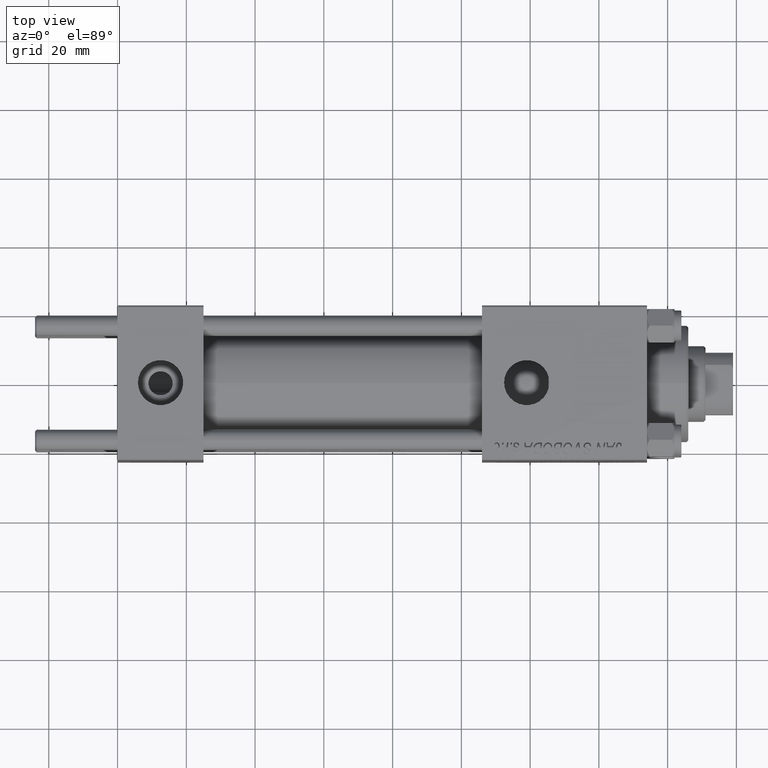
[diagram: clean part render]
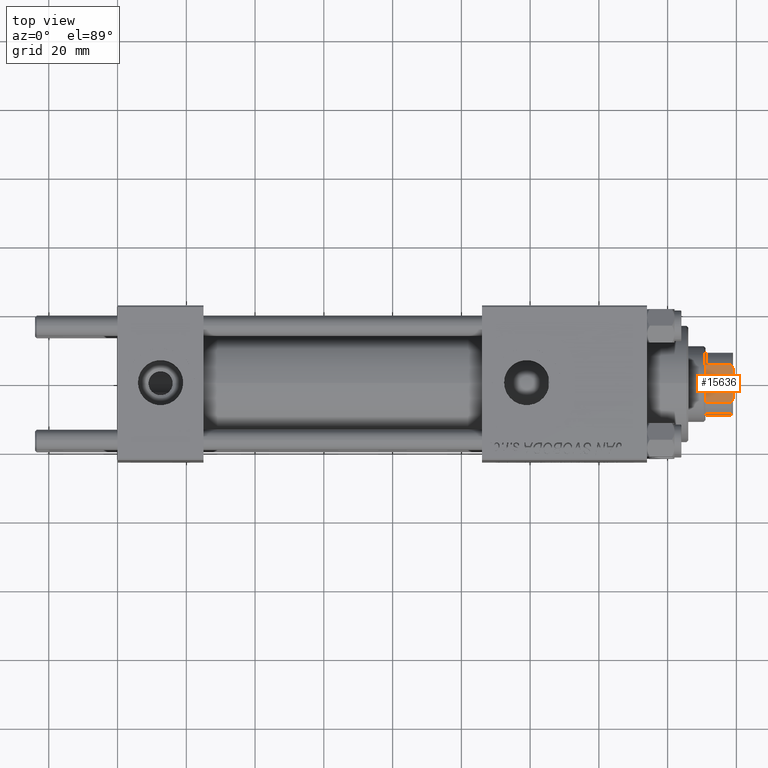
[diagram: same view with one face highlighted and labeled with its STEP entity id]
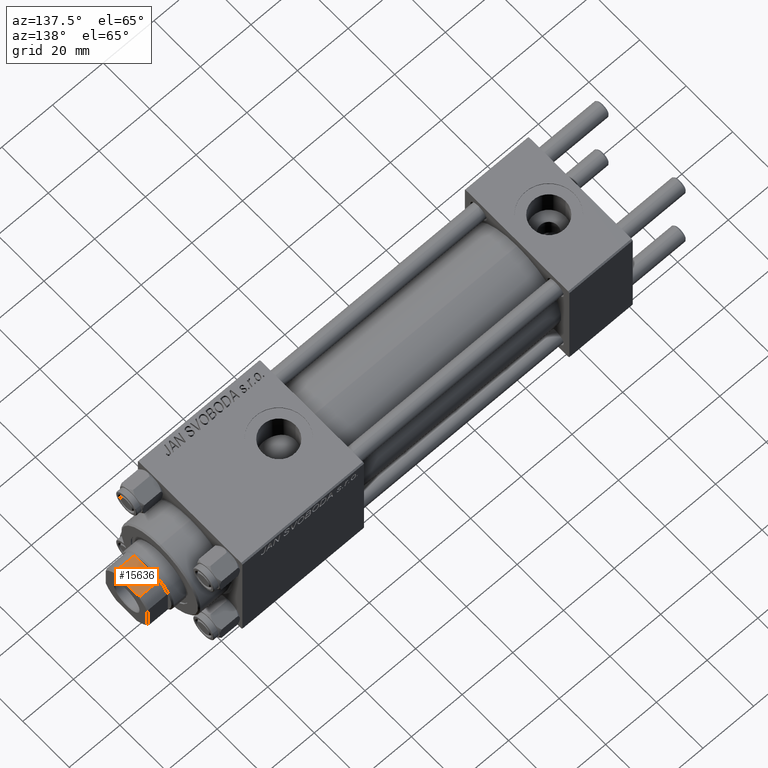
[diagram: same view with one face highlighted and labeled with its STEP entity id]
A machine part, top view. The second image highlights one B-rep face of the part: STEP entity #15636.
A second angle (auxiliary view) of the same face is appended — the face is thin or edge-on in the first view.
In plain terms, the highlighted planar face has unit normal (-0, 0, -1).
Its self-contained STEP definition (entity closure, byte-faithful):
#159 = VERTEX_POINT ( 'NONE', #22724 ) ;
#4234 = CARTESIAN_POINT ( 'NONE',  ( -5.408326913195988794, -8.999999999999998224, 146.0000000000001137 ) ) ;
#4297 = CARTESIAN_POINT ( 'NONE',  ( -5.408326913195988794, -8.999999999999998224, -0.001000000000001000089 ) ) ;
#4768 = CARTESIAN_POINT ( 'NONE',  ( 5.408326913195988794, -8.999999999999998224, 153.5000000000000284 ) ) ;
#4812 = EDGE_LOOP ( 'NONE', ( #33357, #28905, #21882, #31845, #32498, #38510 ) ) ;
#5033 = VERTEX_POINT ( 'NONE', #26458 ) ;
#6697 = PLANE ( 'NONE',  #16292 ) ;
#7551 = VECTOR ( 'NONE', #41103, 1000.000000000000000 ) ;
#7802 = VECTOR ( 'NONE', #22065, 1000.000000000000000 ) ;
#8099 = LINE ( 'NONE', #4297, #40327 ) ;
#8572 = LINE ( 'NONE', #23962, #7551 ) ;
#10500 = DIRECTION ( 'NONE',  ( 0.000000000000000000, -0.000000000000000000, 1.000000000000000000 ) ) ;
#11441 = EDGE_CURVE ( 'NONE', #36861, #5033, #8099, .T. ) ;
#13546 = CARTESIAN_POINT ( 'NONE',  ( -9.000000000000001776, -9.000000000000001776, 154.0000000000000284 ) ) ;
#15636 = ADVANCED_FACE ( 'NONE', ( #48089 ), #6697, .F. ) ;
#15660 = VECTOR ( 'NONE', #40193, 1000.000000000000000 ) ;
#15883 = CARTESIAN_POINT ( 'NONE',  ( 4.714305797500248474, -9.000000000000001776, 153.8450817439748732 ) ) ;
#16292 = AXIS2_PLACEMENT_3D ( 'NONE', #13546, #17825, #10500 ) ;
#17825 = DIRECTION ( 'NONE',  ( 0.000000000000000000, 1.000000000000000000, 0.000000000000000000 ) ) ;
#21882 = ORIENTED_EDGE ( 'NONE', *, *, #46756, .F. ) ;
#22065 = DIRECTION ( 'NONE',  ( 1.000000000000000000, 0.000000000000000000, 0.000000000000000000 ) ) ;
#22724 = CARTESIAN_POINT ( 'NONE',  ( -4.358898943540679305, -9.000000000000001776, 154.0000000000000284 ) ) ;
#23015 = CARTESIAN_POINT ( 'NONE',  ( 5.408326913195988794, -8.999999999999998224, 146.0000000000001137 ) ) ;
#23888 = EDGE_CURVE ( 'NONE', #159, #5033, #29561, .T. ) ;
#23962 = CARTESIAN_POINT ( 'NONE',  ( 5.408326913195988794, -8.999999999999998224, -0.001000000000001000089 ) ) ;
#24382 = CARTESIAN_POINT ( 'NONE',  ( 5.408326913195988794, -8.999999999999998224, 153.5000000000000284 ) ) ;
#26458 = CARTESIAN_POINT ( 'NONE',  ( -5.408326913195988794, -8.999999999999998224, 153.5000000000000284 ) ) ;
#28030 = DIRECTION ( 'NONE',  ( -0.000000000000000000, -0.000000000000000000, 1.000000000000000000 ) ) ;
#28905 = ORIENTED_EDGE ( 'NONE', *, *, #40336, .T. ) ;
#29085 = CARTESIAN_POINT ( 'NONE',  ( -9.000000000000001776, -9.000000000000001776, 146.0000000000000284 ) ) ;
#29561 = B_SPLINE_CURVE_WITH_KNOTS ( 'NONE', 3,
 ( #42578, #35763, #43079, #35016 ),
 .UNSPECIFIED., .F., .F.,
 ( 4, 4 ),
 ( 0.000000000000000000, 0.001162453897363188238 ),
 .UNSPECIFIED. ) ;
#30144 = VERTEX_POINT ( 'NONE', #24382 ) ;
#31759 = CARTESIAN_POINT ( 'NONE',  ( 5.063687070142451674, -8.999999999999998224, 153.6775166608139500 ) ) ;
#31845 = ORIENTED_EDGE ( 'NONE', *, *, #23888, .T. ) ;
#32498 = ORIENTED_EDGE ( 'NONE', *, *, #11441, .F. ) ;
#32938 = VERTEX_POINT ( 'NONE', #23015 ) ;
#33357 = ORIENTED_EDGE ( 'NONE', *, *, #35024, .T. ) ;
#33869 = VERTEX_POINT ( 'NONE', #37860 ) ;
#35016 = CARTESIAN_POINT ( 'NONE',  ( -5.408326913195988794, -8.999999999999998224, 153.5000000000000284 ) ) ;
#35024 = EDGE_CURVE ( 'NONE', #32938, #30144, #8572, .T. ) ;
#35069 = CARTESIAN_POINT ( 'NONE',  ( 4.358898943540679305, -9.000000000000001776, 154.0000000000000284 ) ) ;
#35763 = CARTESIAN_POINT ( 'NONE',  ( -4.714305797500255579, -9.000000000000001776, 153.8450817439748732 ) ) ;
#36413 = EDGE_CURVE ( 'NONE', #36861, #32938, #36666, .T. ) ;
#36666 = LINE ( 'NONE', #29085, #15660 ) ;
#36861 = VERTEX_POINT ( 'NONE', #4234 ) ;
#37860 = CARTESIAN_POINT ( 'NONE',  ( 4.358898943540679305, -9.000000000000001776, 154.0000000000000284 ) ) ;
#38510 = ORIENTED_EDGE ( 'NONE', *, *, #36413, .T. ) ;
#40193 = DIRECTION ( 'NONE',  ( 1.000000000000000000, 0.000000000000000000, 0.000000000000000000 ) ) ;
#40327 = VECTOR ( 'NONE', #28030, 1000.000000000000000 ) ;
#40336 = EDGE_CURVE ( 'NONE', #30144, #33869, #40442, .T. ) ;
#40442 = B_SPLINE_CURVE_WITH_KNOTS ( 'NONE', 3,
 ( #4768, #31759, #15883, #35069 ),
 .UNSPECIFIED., .F., .F.,
 ( 4, 4 ),
 ( 0.000000000000000000, 0.001162453897363189756 ),
 .UNSPECIFIED. ) ;
#41103 = DIRECTION ( 'NONE',  ( -0.000000000000000000, -0.000000000000000000, 1.000000000000000000 ) ) ;
#41987 = CARTESIAN_POINT ( 'NONE',  ( -9.000000000000001776, -9.000000000000001776, 154.0000000000000284 ) ) ;
#42578 = CARTESIAN_POINT ( 'NONE',  ( -4.358898943540679305, -9.000000000000001776, 154.0000000000000284 ) ) ;
#43079 = CARTESIAN_POINT ( 'NONE',  ( -5.063687070142449009, -9.000000000000001776, 153.6775166608139500 ) ) ;
#46756 = EDGE_CURVE ( 'NONE', #159, #33869, #49521, .T. ) ;
#48089 = FACE_OUTER_BOUND ( 'NONE', #4812, .T. ) ;
#49521 = LINE ( 'NONE', #41987, #7802 ) ;